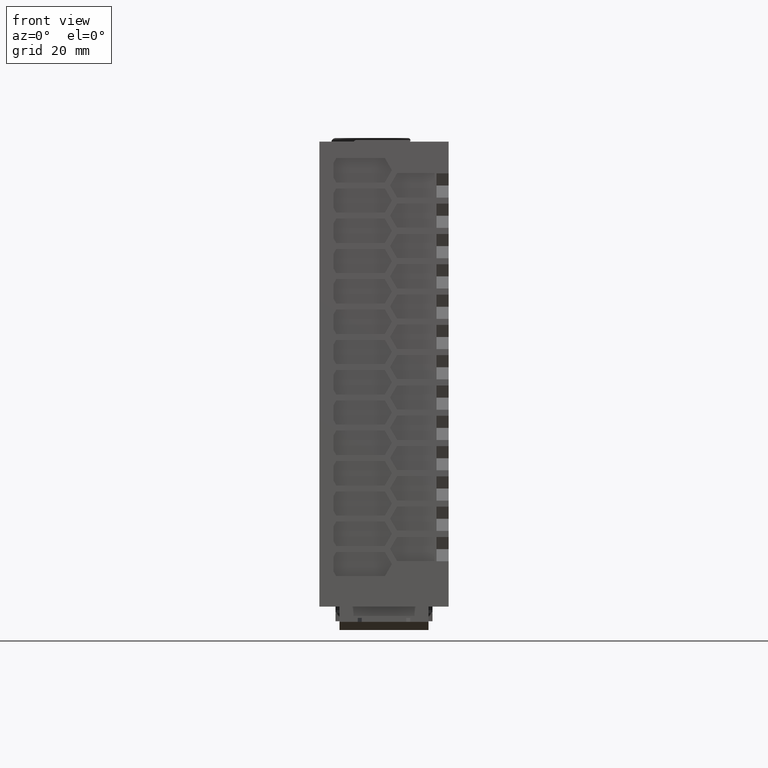
[diagram: clean part render]
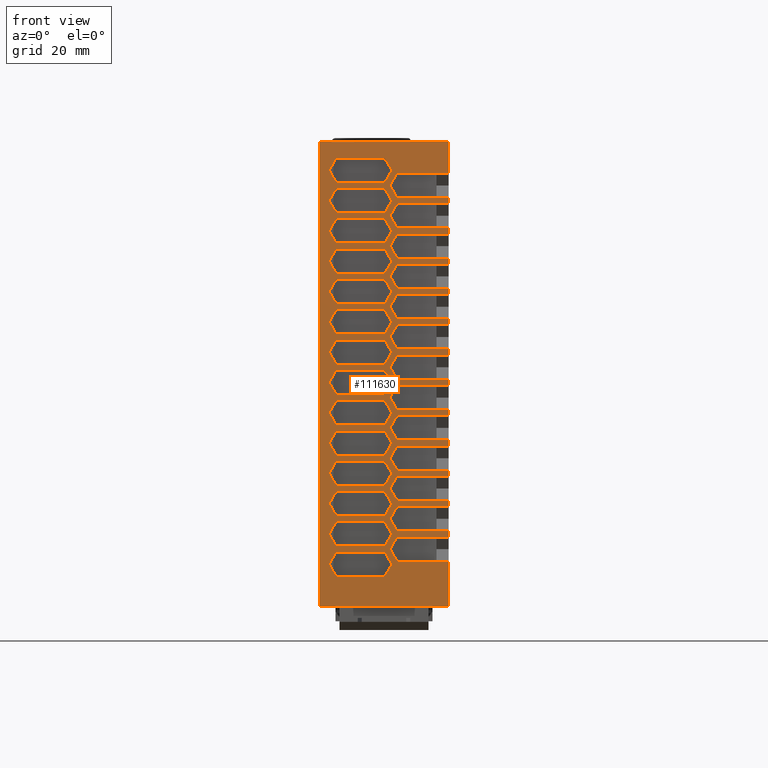
[diagram: same view with one face highlighted and labeled with its STEP entity id]
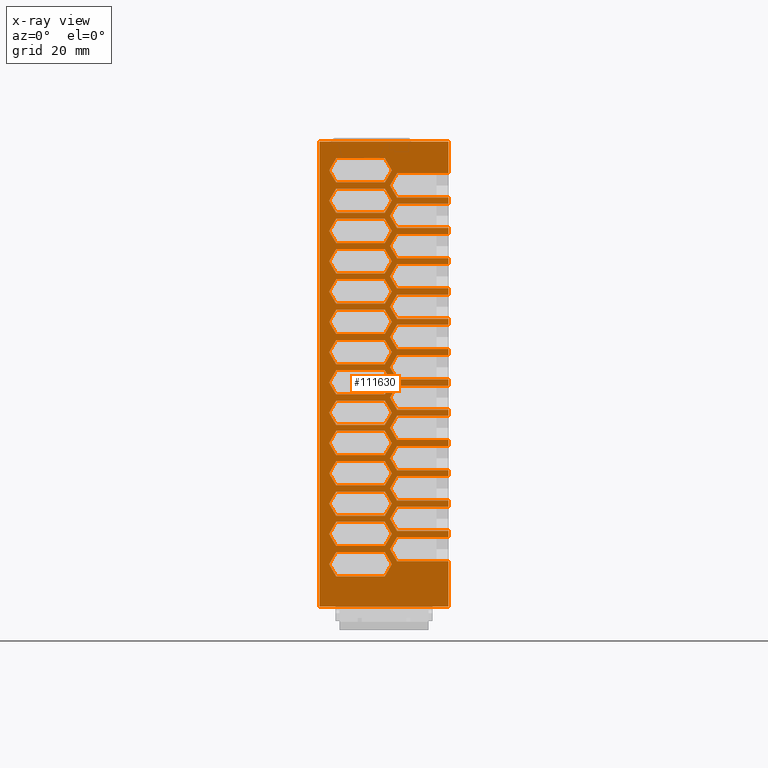
[diagram: x-ray of the same camera — body ghosted, the highlighted face saturated]
A machine part, front view. The second image highlights one B-rep face of the part: STEP entity #111630.
The next image is the same camera in x-ray: the body ghosted, the highlighted face saturated — about 0% of this face is hidden behind the body in this view.
In plain terms, the highlighted planar face has unit normal (0, -1, 0).
Its self-contained STEP definition (entity closure, byte-faithful):
#1830=CARTESIAN_POINT('',(32.,-65.,-80.249999999998));
#1840=VERTEX_POINT('',#1830);
#1890=CARTESIAN_POINT('',(0.,-65.,-80.2500000000008));
#1900=DIRECTION('',(1.,0.,0.));
#1910=VECTOR('',#1900,1.);
#1920=LINE('',#1890,#1910);
#1930=CARTESIAN_POINT('',(19.2320508075701,-65.,-80.2500000000005));
#1940=VERTEX_POINT('',#1930);
#1950=EDGE_CURVE('',#1940,#1840,#1920,.T.);
#2350=CARTESIAN_POINT('',(62.1003082949024,-65.,0.));
#2360=DIRECTION('',(-0.500000000000017,0.,-0.866025403784429));
#2370=VECTOR('',#2360,1.);
#2380=LINE('',#2350,#2370);
#2390=CARTESIAN_POINT('',(19.2320508075704,-65.,-74.2499999999975));
#2400=VERTEX_POINT('',#2390);
#2410=CARTESIAN_POINT('',(17.5000000000013,-65.,-77.2500000000008));
#2420=VERTEX_POINT('',#2410);
#2430=EDGE_CURVE('',#2400,#2420,#2380,.T.);
#2810=CARTESIAN_POINT('',(32.,-65.,-27.7499999999999));
#2820=VERTEX_POINT('',#2810);
#2850=CARTESIAN_POINT('',(0.,-65.,-27.7500000000008));
#2860=DIRECTION('',(1.,0.,0.));
#2870=VECTOR('',#2860,1.);
#2880=LINE('',#2850,#2870);
#2890=CARTESIAN_POINT('',(19.2320508075701,-65.,-27.7499999999999));
#2900=VERTEX_POINT('',#2890);
#2910=EDGE_CURVE('',#2900,#2820,#2880,.T.);
#3310=CARTESIAN_POINT('',(70.7605623327472,-65.,0.));
#3320=DIRECTION('',(-0.500000000000017,0.,-0.866025403784429));
#3330=VECTOR('',#3320,1.);
#3340=LINE('',#3310,#3330);
#3350=CARTESIAN_POINT('',(19.2320508075704,-65.,-89.249999999997));
#3360=VERTEX_POINT('',#3350);
#3370=CARTESIAN_POINT('',(17.5000000000013,-65.,-92.2500000000008));
#3380=VERTEX_POINT('',#3370);
#3390=EDGE_CURVE('',#3360,#3380,#3340,.T.);
#7830=CARTESIAN_POINT('',(32.,-65.,-87.7499999999977));
#7840=VERTEX_POINT('',#7830);
#7890=CARTESIAN_POINT('',(0.,-65.,-87.7500000000008));
#7900=DIRECTION('',(1.,0.,0.));
#7910=VECTOR('',#7900,1.);
#7920=LINE('',#7890,#7910);
#7930=CARTESIAN_POINT('',(19.23205080757,-65.,-87.7500000000005));
#7940=VERTEX_POINT('',#7930);
#7950=EDGE_CURVE('',#7940,#7840,#7920,.T.);
#8880=CARTESIAN_POINT('',(19.2320508075704,-65.,-81.7499999999972));
#8890=VERTEX_POINT('',#8880);
#8920=CARTESIAN_POINT('',(0.,-65.,-81.7499999999972));
#8930=DIRECTION('',(-1.,0.,0.));
#8940=VECTOR('',#8930,1.);
#8950=LINE('',#8920,#8940);
#8960=CARTESIAN_POINT('',(32.,-65.,-81.7499999999972));
#8970=VERTEX_POINT('',#8960);
#8980=EDGE_CURVE('',#8970,#8890,#8950,.T.);
#10450=CARTESIAN_POINT('',(32.,-65.,-65.2500000000008));
#10460=VERTEX_POINT('',#10450);
#10510=CARTESIAN_POINT('',(0.,-65.,-65.2500000000008));
#10520=DIRECTION('',(1.,0.,0.));
#10530=VECTOR('',#10520,1.);
#10540=LINE('',#10510,#10530);
#10550=CARTESIAN_POINT('',(19.2320508075701,-65.,-65.2500000000005));
#10560=VERTEX_POINT('',#10550);
#10570=EDGE_CURVE('',#10560,#10460,#10540,.T.);
#12840=CARTESIAN_POINT('',(19.2320508075704,-65.,-59.2499999999981));
#12850=VERTEX_POINT('',#12840);
#12880=CARTESIAN_POINT('',(0.,-65.,-59.2499999999981));
#12890=DIRECTION('',(-1.,0.,0.));
#12900=VECTOR('',#12890,1.);
#12910=LINE('',#12880,#12900);
#12920=CARTESIAN_POINT('',(32.,-65.,-59.2499999999981));
#12930=VERTEX_POINT('',#12920);
#12940=EDGE_CURVE('',#12930,#12850,#12910,.T.);
#20150=CARTESIAN_POINT('',(19.2320508075713,-65.,-44.2499999999991));
#20160=VERTEX_POINT('',#20150);
#20190=CARTESIAN_POINT('',(0.,-65.,-44.2499999999986));
#20200=DIRECTION('',(-1.,0.,0.));
#20210=VECTOR('',#20200,1.);
#20220=LINE('',#20190,#20210);
#20230=CARTESIAN_POINT('',(32.,-65.,-44.2499999999986));
#20240=VERTEX_POINT('',#20230);
#20250=EDGE_CURVE('',#20240,#20160,#20220,.T.);
#27670=CARTESIAN_POINT('',(0.,-65.,0.));
#27680=DIRECTION('',(0.,0.,-1.));
#27690=VECTOR('',#27680,1.);
#27700=LINE('',#27670,#27690);
#27710=CARTESIAN_POINT('',(0.,-65.,1.09999999999935));
#27720=VERTEX_POINT('',#27710);
#27730=CARTESIAN_POINT('',(0.,-65.,-114.));
#27740=VERTEX_POINT('',#27730);
#27750=EDGE_CURVE('',#27720,#27740,#27700,.T.);
#31780=CARTESIAN_POINT('',(19.2320508075704,-65.,-29.2499999999992));
#31790=VERTEX_POINT('',#31780);
#31820=CARTESIAN_POINT('',(0.,-65.,-29.2499999999992));
#31830=DIRECTION('',(-1.,0.,0.));
#31840=VECTOR('',#31830,1.);
#31850=LINE('',#31820,#31840);
#31860=CARTESIAN_POINT('',(32.,-65.,-29.2499999999992));
#31870=VERTEX_POINT('',#31860);
#31880=EDGE_CURVE('',#31870,#31790,#31850,.T.);
#32810=CARTESIAN_POINT('',(19.2320508075704,-65.,-66.7499999999978));
#32820=VERTEX_POINT('',#32810);
#32850=CARTESIAN_POINT('',(0.,-65.,-66.7499999999978));
#32860=DIRECTION('',(-1.,0.,0.));
#32870=VECTOR('',#32860,1.);
#32880=LINE('',#32850,#32870);
#32890=CARTESIAN_POINT('',(32.,-65.,-66.7499999999978));
#32900=VERTEX_POINT('',#32890);
#32910=EDGE_CURVE('',#32900,#32820,#32880,.T.);
#33280=CARTESIAN_POINT('',(19.2320508075704,-65.,-6.74999999999972));
#33290=VERTEX_POINT('',#33280);
#33320=CARTESIAN_POINT('',(0.,-65.,-6.74999999999972));
#33330=DIRECTION('',(-1.,0.,0.));
#33340=VECTOR('',#33330,1.);
#33350=LINE('',#33320,#33340);
#33360=CARTESIAN_POINT('',(32.,-65.,-6.74999999999972));
#33370=VERTEX_POINT('',#33360);
#33380=EDGE_CURVE('',#33370,#33290,#33350,.T.);
#33820=CARTESIAN_POINT('',(19.2320508075704,-65.,-14.2499999999997));
#33830=VERTEX_POINT('',#33820);
#33860=CARTESIAN_POINT('',(0.,-65.,-14.2499999999997));
#33870=DIRECTION('',(-1.,0.,0.));
#33880=VECTOR('',#33870,1.);
#33890=LINE('',#33860,#33880);
#33900=CARTESIAN_POINT('',(32.,-65.,-14.2499999999997));
#33910=VERTEX_POINT('',#33900);
#33920=EDGE_CURVE('',#33910,#33830,#33890,.T.);
#35790=CARTESIAN_POINT('',(32.,-65.,-57.7499999999988));
#35800=VERTEX_POINT('',#35790);
#35850=CARTESIAN_POINT('',(0.,-65.,-57.7500000000008));
#35860=DIRECTION('',(1.,0.,0.));
#35870=VECTOR('',#35860,1.);
#35880=LINE('',#35850,#35870);
#35890=CARTESIAN_POINT('',(19.2320508075694,-65.,-57.7499999999988));
#35900=VERTEX_POINT('',#35890);
#35910=EDGE_CURVE('',#35900,#35800,#35880,.T.);
#36830=CARTESIAN_POINT('',(19.2320508075709,-65.,-21.7499999999997));
#36840=VERTEX_POINT('',#36830);
#36870=CARTESIAN_POINT('',(0.,-65.,-21.7499999999994));
#36880=DIRECTION('',(-1.,0.,0.));
#36890=VECTOR('',#36880,1.);
#36900=LINE('',#36870,#36890);
#36910=CARTESIAN_POINT('',(32.,-65.,-21.7499999999994));
#36920=VERTEX_POINT('',#36910);
#36930=EDGE_CURVE('',#36920,#36840,#36900,.T.);
#37210=CARTESIAN_POINT('',(19.2320508075711,-65.,-36.7499999999989));
#37220=VERTEX_POINT('',#37210);
#37250=CARTESIAN_POINT('',(0.,-65.,-36.7499999999989));
#37260=DIRECTION('',(-1.,0.,0.));
#37270=VECTOR('',#37260,1.);
#37280=LINE('',#37250,#37270);
#37290=CARTESIAN_POINT('',(32.,-65.,-36.7499999999989));
#37300=VERTEX_POINT('',#37290);
#37310=EDGE_CURVE('',#37300,#37220,#37280,.T.);
#39740=CARTESIAN_POINT('',(-200.318564891799,-264.318564891799,
1.09999999999935));
#39750=CARTESIAN_POINT('',(231.3185648918,-264.318564891799,
1.09999999999935));
#39760=CARTESIAN_POINT('',(-200.318564891799,251.318564891799,
1.09999999999935));
#39770=CARTESIAN_POINT('',(231.3185648918,251.318564891799,
1.09999999999935));
#39780=B_SPLINE_SURFACE_WITH_KNOTS('',1,1,((#39740,#39760),(#39750,
#39770)),.UNSPECIFIED.,.F.,.F.,.F.,(2,2),(2,2),(-200.818564891799,
230.818564891799),(-200.818564891799,314.818564891799),.UNSPECIFIED.);
#41080=CARTESIAN_POINT('',(32.,-65.,1.09999999999935));
#41090=VERTEX_POINT('',#41080);
#41120=CARTESIAN_POINT('',(40.,-65.,1.));
#41130=DIRECTION('',(0.,-1.,0.));
#41140=DIRECTION('',(0.,0.,1.));
#41150=AXIS2_PLACEMENT_3D('',#41120,#41130,#41140);
#41160=PLANE('',#41150);
#41170=CARTESIAN_POINT('',(32.,-65.,1.09999999999935));
#41180=CARTESIAN_POINT('',(29.3333333333334,-65.,1.09999999999935));
#41190=CARTESIAN_POINT('',(26.6666666666666,-65.,1.09999999999935));
#41200=CARTESIAN_POINT('',(24.,-65.,1.09999999999935));
#41210=CARTESIAN_POINT('',(21.3333333333333,-65.,1.09999999999935));
#41220=CARTESIAN_POINT('',(18.6666666666667,-65.,1.09999999999935));
#41230=CARTESIAN_POINT('',(16.,-65.,1.09999999999935));
#41240=CARTESIAN_POINT('',(13.3333333333333,-65.,1.09999999999935));
#41250=CARTESIAN_POINT('',(10.6666666666667,-65.,1.09999999999935));
#41260=CARTESIAN_POINT('',(8.,-65.,1.09999999999935));
#41270=CARTESIAN_POINT('',(5.33333333333333,-65.,1.09999999999935));
#41280=CARTESIAN_POINT('',(2.66666666666665,-65.,1.09999999999935));
#41290=CARTESIAN_POINT('',(0.,-65.,1.09999999999935));
#41300=B_SPLINE_CURVE_WITH_KNOTS('',3,(#41170,#41180,#41190,#41200,
#41210,#41220,#41230,#41240,#41250,#41260,#41270,#41280,#41290),
.UNSPECIFIED.,.F.,.F.,(4,3,3,3,4),(0.,7.99999999999999,16.,24.,32.),
.UNSPECIFIED.);
#41310=SURFACE_CURVE('',#41300,(#41160,#39780),.CURVE_3D.);
#41320=EDGE_CURVE('',#41090,#27720,#41310,.T.);
#47060=CARTESIAN_POINT('',(32.,-65.,-114.));
#47070=VERTEX_POINT('',#47060);
#47100=CARTESIAN_POINT('',(32.,-65.,0.));
#47110=DIRECTION('',(0.,0.,-1.));
#47120=VECTOR('',#47110,1.);
#47130=LINE('',#47100,#47120);
#47140=CARTESIAN_POINT('',(32.,-65.,-102.749999999997));
#47150=VERTEX_POINT('',#47140);
#47160=EDGE_CURVE('',#47150,#47070,#47130,.T.);
#47460=CARTESIAN_POINT('',(32.,-65.,-96.7499999999967));
#47470=VERTEX_POINT('',#47460);
#47500=CARTESIAN_POINT('',(32.,-65.,0.));
#47510=DIRECTION('',(0.,0.,1.));
#47520=VECTOR('',#47510,1.);
#47530=LINE('',#47500,#47520);
#47540=CARTESIAN_POINT('',(32.,-65.,-95.2499999999974));
#47550=VERTEX_POINT('',#47540);
#47560=EDGE_CURVE('',#47470,#47550,#47530,.T.);
#47770=CARTESIAN_POINT('',(32.,-65.,-89.249999999997));
#47780=VERTEX_POINT('',#47770);
#47810=EDGE_CURVE('',#47780,#7840,#47530,.T.);
#47870=EDGE_CURVE('',#8970,#1840,#47530,.T.);
#48030=CARTESIAN_POINT('',(32.,-65.,-74.2499999999975));
#48040=VERTEX_POINT('',#48030);
#48070=CARTESIAN_POINT('',(32.,-65.,-72.7499999999982));
#48080=VERTEX_POINT('',#48070);
#48090=EDGE_CURVE('',#48040,#48080,#47530,.T.);
#48340=EDGE_CURVE('',#32900,#10460,#47530,.T.);
#48400=EDGE_CURVE('',#12930,#35800,#47530,.T.);
#48540=CARTESIAN_POINT('',(32.,-65.,-51.7499999999983));
#48550=VERTEX_POINT('',#48540);
#48580=CARTESIAN_POINT('',(32.,-65.,-50.2499999999991));
#48590=VERTEX_POINT('',#48580);
#48600=EDGE_CURVE('',#48550,#48590,#47530,.T.);
#48710=CARTESIAN_POINT('',(32.,-65.,-42.7499999999993));
#48720=VERTEX_POINT('',#48710);
#48730=EDGE_CURVE('',#20240,#48720,#47530,.T.);
#48980=CARTESIAN_POINT('',(32.,-65.,-35.2499999999996));
#48990=VERTEX_POINT('',#48980);
#49000=EDGE_CURVE('',#37300,#48990,#47530,.T.);
#49110=EDGE_CURVE('',#31870,#2820,#47530,.T.);
#49220=CARTESIAN_POINT('',(32.,-65.,-20.2500000000002));
#49230=VERTEX_POINT('',#49220);
#49240=EDGE_CURVE('',#36920,#49230,#47530,.T.);
#49490=CARTESIAN_POINT('',(32.,-65.,-12.7500000000008));
#49500=VERTEX_POINT('',#49490);
#49510=EDGE_CURVE('',#33910,#49500,#47530,.T.);
#49620=CARTESIAN_POINT('',(32.,-65.,0.));
#49630=DIRECTION('',(0.,0.,1.));
#49640=VECTOR('',#49630,1.);
#49650=LINE('',#49620,#49640);
#49660=EDGE_CURVE('',#33370,#41090,#49650,.T.);
#49770=CARTESIAN_POINT('',(0.,-65.,-55.5000000000005));
#49780=DIRECTION('',(-1.,0.,0.));
#49790=VECTOR('',#49780,1.);
#49800=LINE('',#49770,#49790);
#49810=CARTESIAN_POINT('',(16.2009491924307,-65.,-55.5000000000005));
#49820=VERTEX_POINT('',#49810);
#49830=CARTESIAN_POINT('',(4.16505080757037,-65.,-55.5000000000005));
#49840=VERTEX_POINT('',#49830);
#49850=EDGE_CURVE('',#49820,#49840,#49800,.T.);
#50170=CARTESIAN_POINT('',(-31.3419907475948,-65.,0.));
#50180=DIRECTION('',(0.500000000000017,0.,-0.866025403784429));
#50190=VECTOR('',#50180,1.);
#50200=LINE('',#50170,#50190);
#50210=CARTESIAN_POINT('',(2.43300000000068,-65.,-58.5000000000015));
#50220=VERTEX_POINT('',#50210);
#50230=CARTESIAN_POINT('',(4.16505080756931,-65.,-61.5000000000008));
#50240=VERTEX_POINT('',#50230);
#50250=EDGE_CURVE('',#50220,#50240,#50200,.T.);
#52680=CARTESIAN_POINT('',(23.2176096908292,-65.,0.));
#52690=DIRECTION('',(-0.500000000000017,0.,-0.866025403784429));
#52700=VECTOR('',#52690,1.);
#52710=LINE('',#52680,#52700);
#52720=CARTESIAN_POINT('',(4.16505080757037,-65.,-33.0000000000005));
#52730=VERTEX_POINT('',#52720);
#52740=CARTESIAN_POINT('',(2.43300000000031,-65.,-36.0000000000008));
#52750=VERTEX_POINT('',#52740);
#52760=EDGE_CURVE('',#52730,#52750,#52710,.T.);
#55900=CARTESIAN_POINT('',(0.,-65.,-114.));
#55910=DIRECTION('',(-1.,0.,0.));
#55920=VECTOR('',#55910,1.);
#55930=LINE('',#55900,#55920);
#55940=EDGE_CURVE('',#47070,#27740,#55930,.T.);
#57530=CARTESIAN_POINT('',(0.,-65.,-35.2500000000008));
#57540=DIRECTION('',(1.,0.,0.));
#57550=VECTOR('',#57540,1.);
#57560=LINE('',#57530,#57550);
#57570=CARTESIAN_POINT('',(19.2320508075701,-65.,-35.2500000000005));
#57580=VERTEX_POINT('',#57570);
#57590=EDGE_CURVE('',#57580,#48990,#57560,.T.);
#58520=CARTESIAN_POINT('',(19.2320508075704,-65.,-51.7500000000006));
#58530=VERTEX_POINT('',#58520);
#58560=CARTESIAN_POINT('',(0.,-65.,-51.7499999999983));
#58570=DIRECTION('',(-1.,0.,0.));
#58580=VECTOR('',#58570,1.);
#58590=LINE('',#58560,#58580);
#58600=EDGE_CURVE('',#48550,#58530,#58590,.T.);
#61490=CARTESIAN_POINT('',(0.,-65.,-74.2499999999975));
#61500=DIRECTION('',(-1.,0.,0.));
#61510=VECTOR('',#61500,1.);
#61520=LINE('',#61490,#61510);
#61530=EDGE_CURVE('',#48040,#2400,#61520,.T.);
#63240=CARTESIAN_POINT('',(0.,-65.,-50.2500000000008));
#63250=DIRECTION('',(1.,0.,0.));
#63260=VECTOR('',#63250,1.);
#63270=LINE('',#63240,#63260);
#63280=CARTESIAN_POINT('',(19.2320508075701,-65.,-50.2500000000005));
#63290=VERTEX_POINT('',#63280);
#63300=EDGE_CURVE('',#63290,#48590,#63270,.T.);
#64450=CARTESIAN_POINT('',(0.,-65.,-72.7500000000008));
#64460=DIRECTION('',(1.,0.,0.));
#64470=VECTOR('',#64460,1.);
#64480=LINE('',#64450,#64470);
#64490=CARTESIAN_POINT('',(19.2320508075694,-65.,-72.7499999999982));
#64500=VERTEX_POINT('',#64490);
#64510=EDGE_CURVE('',#64500,#48080,#64480,.T.);
#65660=CARTESIAN_POINT('',(40.4496732002904,-65.,0.));
#65670=DIRECTION('',(-0.500000000000017,0.,-0.866025403784429));
#65680=VECTOR('',#65670,1.);
#65690=LINE('',#65660,#65680);
#65700=CARTESIAN_POINT('',(17.5000000000013,-65.,-39.7500000000008));
#65710=VERTEX_POINT('',#65700);
#65720=EDGE_CURVE('',#37220,#65710,#65690,.T.);
#65970=CARTESIAN_POINT('',(49.1099272381352,-65.,0.));
#65980=DIRECTION('',(-0.500000000000017,0.,-0.866025403784429));
#65990=VECTOR('',#65980,1.);
#66000=LINE('',#65970,#65990);
#66010=CARTESIAN_POINT('',(17.5000000000013,-65.,-54.7500000000008));
#66020=VERTEX_POINT('',#66010);
#66030=EDGE_CURVE('',#58530,#66020,#66000,.T.);
#69520=CARTESIAN_POINT('',(-2.8516096908283,-65.,0.));
#69530=DIRECTION('',(-0.500000000000017,0.,0.866025403784429));
#69540=VECTOR('',#69530,1.);
#69550=LINE('',#69520,#69540);
#69560=CARTESIAN_POINT('',(17.9329999999987,-65.,-36.));
#69570=VERTEX_POINT('',#69560);
#69580=CARTESIAN_POINT('',(16.2009491924307,-65.,-33.0000000000008));
#69590=VERTEX_POINT('',#69580);
#69600=EDGE_CURVE('',#69570,#69590,#69550,.T.);
#69920=CARTESIAN_POINT('',(3.21058083755696,-65.,0.));
#69930=DIRECTION('',(0.500000000000017,0.,-0.866025403784429));
#69940=VECTOR('',#69930,1.);
#69950=LINE('',#69920,#69940);
#69960=CARTESIAN_POINT('',(17.5000000000013,-65.,-24.7500000000008));
#69970=VERTEX_POINT('',#69960);
#69980=EDGE_CURVE('',#69970,#2900,#69950,.T.);
#85100=CARTESIAN_POINT('',(0.,-65.,-39.0000000000008));
#85110=DIRECTION('',(1.,0.,0.));
#85120=VECTOR('',#85110,1.);
#85130=LINE('',#85100,#85120);
#85140=CARTESIAN_POINT('',(4.16505080756931,-65.,-39.0000000000008));
#85150=VERTEX_POINT('',#85140);
#85160=CARTESIAN_POINT('',(16.2009491924294,-65.,-39.0000000000008));
#85170=VERTEX_POINT('',#85160);
#85180=EDGE_CURVE('',#85150,#85170,#85130,.T.);
#85910=CARTESIAN_POINT('',(-18.3516096908276,-65.,0.));
#85920=DIRECTION('',(0.500000000000017,0.,-0.866025403784429));
#85930=VECTOR('',#85920,1.);
#85940=LINE('',#85910,#85930);
#85950=EDGE_CURVE('',#52750,#85150,#85940,.T.);
#86130=CARTESIAN_POINT('',(38.7176096908262,-65.,0.));
#86140=DIRECTION('',(0.500000000000017,0.,0.866025403784429));
#86150=VECTOR('',#86140,1.);
#86160=LINE('',#86130,#86150);
#86170=EDGE_CURVE('',#85170,#69570,#86160,.T.);
#87820=CARTESIAN_POINT('',(0.,-65.,-89.249999999997));
#87830=DIRECTION('',(-1.,0.,0.));
#87840=VECTOR('',#87830,1.);
#87850=LINE('',#87820,#87840);
#87860=EDGE_CURVE('',#47780,#3360,#87850,.T.);
#90380=CARTESIAN_POINT('',(0.,-65.,-42.7500000000008));
#90390=DIRECTION('',(1.,0.,0.));
#90400=VECTOR('',#90390,1.);
#90410=LINE('',#90380,#90400);
#90420=CARTESIAN_POINT('',(19.2320508075694,-65.,-42.7499999999993));
#90430=VERTEX_POINT('',#90420);
#90440=EDGE_CURVE('',#90430,#48720,#90410,.T.);
#92730=CARTESIAN_POINT('',(0.,-65.,-102.750000000001));
#92740=DIRECTION('',(1.,0.,0.));
#92750=VECTOR('',#92740,1.);
#92760=LINE('',#92730,#92750);
#92770=CARTESIAN_POINT('',(19.2320508075694,-65.,-102.749999999997));
#92780=VERTEX_POINT('',#92770);
#92790=EDGE_CURVE('',#92780,#47150,#92760,.T.);
#93100=CARTESIAN_POINT('',(23.1291651246009,-65.,0.));
#93110=DIRECTION('',(-0.500000000000017,0.,-0.866025403784429));
#93120=VECTOR('',#93110,1.);
#93130=LINE('',#93100,#93120);
#93140=CARTESIAN_POINT('',(17.5000000000013,-65.,-9.75000000000083));
#93150=VERTEX_POINT('',#93140);
#93160=EDGE_CURVE('',#33290,#93150,#93130,.T.);
#93730=CARTESIAN_POINT('',(-40.0906893516669,-65.,0.));
#93740=DIRECTION('',(0.500000000000017,0.,-0.866025403784429));
#93750=VECTOR('',#93740,1.);
#93760=LINE('',#93730,#93750);
#93770=CARTESIAN_POINT('',(17.5000000000013,-65.,-99.7500000000008));
#93780=VERTEX_POINT('',#93770);
#93790=EDGE_CURVE('',#93780,#92780,#93760,.T.);
#94040=CARTESIAN_POINT('',(-1.11954618136543,-65.,0.));
#94050=DIRECTION('',(0.500000000000017,0.,-0.866025403784429));
#94060=VECTOR('',#94050,1.);
#94070=LINE('',#94040,#94060);
#94080=CARTESIAN_POINT('',(17.5000000000013,-65.,-32.2500000000008));
#94090=VERTEX_POINT('',#94080);
#94100=EDGE_CURVE('',#94090,#57580,#94070,.T.);
#94760=CARTESIAN_POINT('',(-27.1003082948998,-65.,0.));
#94770=DIRECTION('',(0.500000000000017,0.,-0.866025403784429));
#94780=VECTOR('',#94770,1.);
#94790=LINE('',#94760,#94780);
#94800=EDGE_CURVE('',#2420,#1940,#94790,.T.);
#96010=CARTESIAN_POINT('',(75.0906893516695,-65.,0.));
#96020=DIRECTION('',(-0.500000000000017,0.,-0.866025403784429));
#96030=VECTOR('',#96020,1.);
#96040=LINE('',#96010,#96030);
#96050=CARTESIAN_POINT('',(19.2320508075704,-65.,-96.7500000000007));
#96060=VERTEX_POINT('',#96050);
#96070=EDGE_CURVE('',#96060,#93780,#96040,.T.);
#96730=CARTESIAN_POINT('',(0.,-65.,-12.7500000000008));
#96740=DIRECTION('',(1.,0.,0.));
#96750=VECTOR('',#96740,1.);
#96760=LINE('',#96730,#96750);
#96770=CARTESIAN_POINT('',(19.2320508075694,-65.,-12.7500000000008));
#96780=VERTEX_POINT('',#96770);
#96790=EDGE_CURVE('',#96780,#49500,#96760,.T.);
#98400=CARTESIAN_POINT('',(-31.4304353138221,-65.,0.));
#98410=DIRECTION('',(0.500000000000017,0.,-0.866025403784429));
#98420=VECTOR('',#98410,1.);
#98430=LINE('',#98400,#98420);
#98440=CARTESIAN_POINT('',(17.5000000000013,-65.,-84.7500000000008));
#98450=VERTEX_POINT('',#98440);
#98460=EDGE_CURVE('',#98450,#7940,#98430,.T.);
#100380=CARTESIAN_POINT('',(0.,-65.,-96.7499999999967));
#100390=DIRECTION('',(-1.,0.,0.));
#100400=VECTOR('',#100390,1.);
#100410=LINE('',#100380,#100400);
#100420=EDGE_CURVE('',#47470,#96060,#100410,.T.);
#101120=CARTESIAN_POINT('',(0.,-65.,-20.2500000000008));
#101130=DIRECTION('',(1.,0.,0.));
#101140=VECTOR('',#101130,1.);
#101150=LINE('',#101120,#101140);
#101160=CARTESIAN_POINT('',(19.2320508075701,-65.,-20.2500000000005));
#101170=VERTEX_POINT('',#101160);
#101180=EDGE_CURVE('',#101170,#49230,#101150,.T.);
#102300=CARTESIAN_POINT('',(36.1195461813681,-65.,0.));
#102310=DIRECTION('',(-0.500000000000017,0.,-0.866025403784429));
#102320=VECTOR('',#102310,1.);
#102330=LINE('',#102300,#102320);
#102340=EDGE_CURVE('',#31790,#94090,#102330,.T.);
#103170=CARTESIAN_POINT('',(0.,-65.,-95.2500000000008));
#103180=DIRECTION('',(1.,0.,0.));
#103190=VECTOR('',#103180,1.);
#103200=LINE('',#103170,#103190);
#103210=CARTESIAN_POINT('',(19.23205080757,-65.,-95.2499999999974));
#103220=VERTEX_POINT('',#103210);
#103230=EDGE_CURVE('',#103220,#47550,#103200,.T.);
#103690=CARTESIAN_POINT('',(0.,-65.,-106.500000000001));
#103700=DIRECTION('',(1.,0.,0.));
#103710=VECTOR('',#103700,1.);
#103720=LINE('',#103690,#103710);
#103730=CARTESIAN_POINT('',(4.1650508075693,-65.,-106.500000000001));
#103740=VERTEX_POINT('',#103730);
#103750=CARTESIAN_POINT('',(16.2009491924294,-65.,-106.500000000001));
#103760=VERTEX_POINT('',#103750);
#103770=EDGE_CURVE('',#103740,#103760,#103720,.T.);
#103780=ORIENTED_EDGE('',*,*,#103770,.F.);
#103790=CARTESIAN_POINT('',(77.6887528611276,-65.,0.));
#103800=DIRECTION('',(0.500000000000017,0.,0.866025403784429));
#103810=VECTOR('',#103800,1.);
#103820=LINE('',#103790,#103810);
#103830=CARTESIAN_POINT('',(17.9329999999991,-65.,-103.5));
#103840=VERTEX_POINT('',#103830);
#103850=EDGE_CURVE('',#103760,#103840,#103820,.T.);
#103860=ORIENTED_EDGE('',*,*,#103850,.F.);
#103870=CARTESIAN_POINT('',(-41.8227528611298,-65.,0.));
#103880=DIRECTION('',(-0.500000000000017,0.,0.866025403784429));
#103890=VECTOR('',#103880,1.);
#103900=LINE('',#103870,#103890);
#103910=CARTESIAN_POINT('',(16.2009491924307,-65.,-100.500000000001));
#103920=VERTEX_POINT('',#103910);
#103930=EDGE_CURVE('',#103840,#103920,#103900,.T.);
#103940=ORIENTED_EDGE('',*,*,#103930,.F.);
#103950=CARTESIAN_POINT('',(0.,-65.,-100.5));
#103960=DIRECTION('',(-1.,0.,0.));
#103970=VECTOR('',#103960,1.);
#103980=LINE('',#103950,#103970);
#103990=CARTESIAN_POINT('',(4.16505080757045,-65.,-100.500000000001));
#104000=VERTEX_POINT('',#103990);
#104010=EDGE_CURVE('',#103920,#104000,#103980,.T.);
#104020=ORIENTED_EDGE('',*,*,#104010,.F.);
#104030=CARTESIAN_POINT('',(62.1887528611307,-65.,0.));
#104040=DIRECTION('',(-0.500000000000017,0.,-0.866025403784429));
#104050=VECTOR('',#104040,1.);
#104060=LINE('',#104030,#104050);
#104070=CARTESIAN_POINT('',(2.43300000000031,-65.,-103.500000000001));
#104080=VERTEX_POINT('',#104070);
#104090=EDGE_CURVE('',#104000,#104080,#104060,.T.);
#104100=ORIENTED_EDGE('',*,*,#104090,.F.);
#104110=CARTESIAN_POINT('',(-57.3227528611291,-65.,0.));
#104120=DIRECTION('',(0.500000000000017,0.,-0.866025403784429));
#104130=VECTOR('',#104120,1.);
#104140=LINE('',#104110,#104130);
#104150=EDGE_CURVE('',#104080,#103740,#104140,.T.);
#104160=ORIENTED_EDGE('',*,*,#104150,.F.);
#104170=EDGE_LOOP('',(#104160,#104100,#104020,#103940,#103860,#103780));
#104180=FACE_BOUND('',#104170,.T.);
#104190=CARTESIAN_POINT('',(-28.8323718043626,-65.,0.));
#104200=DIRECTION('',(-0.500000000000017,0.,0.866025403784429));
#104210=VECTOR('',#104200,1.);
#104220=LINE('',#104190,#104210);
#104230=CARTESIAN_POINT('',(17.9329999999994,-65.,-81.0000000000005));
#104240=VERTEX_POINT('',#104230);
#104250=CARTESIAN_POINT('',(16.2009491924307,-65.,-78.0000000000008));
#104260=VERTEX_POINT('',#104250);
#104270=EDGE_CURVE('',#104240,#104260,#104220,.T.);
#104280=ORIENTED_EDGE('',*,*,#104270,.F.);
#104290=CARTESIAN_POINT('',(0.,-65.,-78.0000000000005));
#104300=DIRECTION('',(-1.,0.,0.));
#104310=VECTOR('',#104300,1.);
#104320=LINE('',#104290,#104310);
#104330=CARTESIAN_POINT('',(4.16505080757045,-65.,-78.0000000000005));
#104340=VERTEX_POINT('',#104330);
#104350=EDGE_CURVE('',#104260,#104340,#104320,.T.);
#104360=ORIENTED_EDGE('',*,*,#104350,.F.);
#104370=CARTESIAN_POINT('',(49.1983718043636,-65.,0.));
#104380=DIRECTION('',(-0.500000000000017,0.,-0.866025403784429));
#104390=VECTOR('',#104380,1.);
#104400=LINE('',#104370,#104390);
#104410=CARTESIAN_POINT('',(2.43300000000106,-65.,-81.0000000000013));
#104420=VERTEX_POINT('',#104410);
#104430=EDGE_CURVE('',#104340,#104420,#104400,.T.);
#104440=ORIENTED_EDGE('',*,*,#104430,.F.);
#104450=CARTESIAN_POINT('',(-44.3323718043619,-65.,0.));
#104460=DIRECTION('',(0.500000000000017,0.,-0.866025403784429));
#104470=VECTOR('',#104460,1.);
#104480=LINE('',#104450,#104470);
#104490=CARTESIAN_POINT('',(4.16505080756932,-65.,-84.0000000000008));
#104500=VERTEX_POINT('',#104490);
#104510=EDGE_CURVE('',#104420,#104500,#104480,.T.);
#104520=ORIENTED_EDGE('',*,*,#104510,.F.);
#104530=CARTESIAN_POINT('',(0.,-65.,-84.0000000000008));
#104540=DIRECTION('',(1.,0.,0.));
#104550=VECTOR('',#104540,1.);
#104560=LINE('',#104530,#104550);
#104570=CARTESIAN_POINT('',(16.2009491924294,-65.,-84.0000000000006));
#104580=VERTEX_POINT('',#104570);
#104590=EDGE_CURVE('',#104500,#104580,#104560,.T.);
#104600=ORIENTED_EDGE('',*,*,#104590,.F.);
#104610=CARTESIAN_POINT('',(64.6983718043605,-65.,0.));
#104620=DIRECTION('',(0.500000000000017,0.,0.866025403784429));
#104630=VECTOR('',#104620,1.);
#104640=LINE('',#104610,#104630);
#104650=EDGE_CURVE('',#104580,#104240,#104640,.T.);
#104660=ORIENTED_EDGE('',*,*,#104650,.F.);
#104670=EDGE_LOOP('',(#104660,#104600,#104520,#104440,#104360,#104280));
#104680=FACE_BOUND('',#104670,.T.);
#104690=CARTESIAN_POINT('',(-27.0118637286724,-65.,0.));
#104700=DIRECTION('',(0.500000000000017,0.,-0.866025403784429));
#104710=VECTOR('',#104700,1.);
#104720=LINE('',#104690,#104710);
#104730=CARTESIAN_POINT('',(2.43300000000106,-65.,-51.0000000000013));
#104740=VERTEX_POINT('',#104730);
#104750=CARTESIAN_POINT('',(4.1650508075693,-65.,-54.0000000000009));
#104760=VERTEX_POINT('',#104750);
#104770=EDGE_CURVE('',#104740,#104760,#104720,.T.);
#104780=ORIENTED_EDGE('',*,*,#104770,.F.);
#104790=CARTESIAN_POINT('',(0.,-65.,-54.0000000000008));
#104800=DIRECTION('',(1.,0.,0.));
#104810=VECTOR('',#104800,1.);
#104820=LINE('',#104790,#104810);
#104830=CARTESIAN_POINT('',(16.2009491924293,-65.,-54.0000000000008));
#104840=VERTEX_POINT('',#104830);
#104850=EDGE_CURVE('',#104760,#104840,#104820,.T.);
#104860=ORIENTED_EDGE('',*,*,#104850,.F.);
#104870=CARTESIAN_POINT('',(47.3778637286709,-65.,0.));
#104880=DIRECTION('',(0.500000000000017,0.,0.866025403784429));
#104890=VECTOR('',#104880,1.);
#104900=LINE('',#104870,#104890);
#104910=CARTESIAN_POINT('',(17.9329999999987,-65.,-51.));
#104920=VERTEX_POINT('',#104910);
#104930=EDGE_CURVE('',#104840,#104920,#104900,.T.);
#104940=ORIENTED_EDGE('',*,*,#104930,.F.);
#104950=CARTESIAN_POINT('',(-11.5118637286731,-65.,0.));
#104960=DIRECTION('',(-0.500000000000017,0.,0.866025403784429));
#104970=VECTOR('',#104960,1.);
#104980=LINE('',#104950,#104970);
#104990=CARTESIAN_POINT('',(16.2009491924307,-65.,-48.0000000000005));
#105000=VERTEX_POINT('',#104990);
#105010=EDGE_CURVE('',#104920,#105000,#104980,.T.);
#105020=ORIENTED_EDGE('',*,*,#105010,.F.);
#105030=CARTESIAN_POINT('',(0.,-65.,-48.0000000000005));
#105040=DIRECTION('',(-1.,0.,0.));
#105050=VECTOR('',#105040,1.);
#105060=LINE('',#105030,#105050);
#105070=CARTESIAN_POINT('',(4.16505080757037,-65.,-48.0000000000006));
#105080=VERTEX_POINT('',#105070);
#105090=EDGE_CURVE('',#105000,#105080,#105060,.T.);
#105100=ORIENTED_EDGE('',*,*,#105090,.F.);
#105110=CARTESIAN_POINT('',(31.877863728674,-65.,0.));
#105120=DIRECTION('',(-0.500000000000017,0.,-0.866025403784429));
#105130=VECTOR('',#105120,1.);
#105140=LINE('',#105110,#105130);
#105150=EDGE_CURVE('',#105080,#104740,#105140,.T.);
#105160=ORIENTED_EDGE('',*,*,#105150,.F.);
#105170=EDGE_LOOP('',(#105160,#105100,#105020,#104940,#104860,#104780));
#105180=FACE_BOUND('',#105170,.T.);
#105190=ORIENTED_EDGE('',*,*,#52760,.F.);
#105200=ORIENTED_EDGE('',*,*,#85950,.F.);
#105210=ORIENTED_EDGE('',*,*,#85180,.F.);
#105220=ORIENTED_EDGE('',*,*,#86170,.F.);
#105230=ORIENTED_EDGE('',*,*,#69600,.F.);
#105240=CARTESIAN_POINT('',(0.,-65.,-33.0000000000005));
#105250=DIRECTION('',(-1.,0.,0.));
#105260=VECTOR('',#105250,1.);
#105270=LINE('',#105240,#105260);
#105280=EDGE_CURVE('',#69590,#52730,#105270,.T.);
#105290=ORIENTED_EDGE('',*,*,#105280,.F.);
#105300=EDGE_LOOP('',(#105290,#105230,#105220,#105210,#105200,#105190));
#105310=FACE_BOUND('',#105300,.T.);
#105320=CARTESIAN_POINT('',(73.3586258422053,-65.,0.));
#105330=DIRECTION('',(0.500000000000017,0.,0.866025403784429));
#105340=VECTOR('',#105330,1.);
#105350=LINE('',#105320,#105340);
#105360=CARTESIAN_POINT('',(16.2009491924293,-65.,-99.0000000000008));
#105370=VERTEX_POINT('',#105360);
#105380=CARTESIAN_POINT('',(17.9329999999991,-65.,-95.9999999999998));
#105390=VERTEX_POINT('',#105380);
#105400=EDGE_CURVE('',#105370,#105390,#105350,.T.);
#105410=ORIENTED_EDGE('',*,*,#105400,.F.);
#105420=CARTESIAN_POINT('',(-37.4926258422074,-65.,0.));
#105430=DIRECTION('',(-0.500000000000017,0.,0.866025403784429));
#105440=VECTOR('',#105430,1.);
#105450=LINE('',#105420,#105440);
#105460=CARTESIAN_POINT('',(16.2009491924313,-65.,-93.0000000000005));
#105470=VERTEX_POINT('',#105460);
#105480=EDGE_CURVE('',#105390,#105470,#105450,.T.);
#105490=ORIENTED_EDGE('',*,*,#105480,.F.);
#105500=CARTESIAN_POINT('',(0.,-65.,-93.0000000000005));
#105510=DIRECTION('',(-1.,0.,0.));
#105520=VECTOR('',#105510,1.);
#105530=LINE('',#105500,#105520);
#105540=CARTESIAN_POINT('',(4.16505080757045,-65.,-93.0000000000005));
#105550=VERTEX_POINT('',#105540);
#105560=EDGE_CURVE('',#105470,#105550,#105530,.T.);
#105570=ORIENTED_EDGE('',*,*,#105560,.F.);
#105580=CARTESIAN_POINT('',(57.8586258422083,-65.,0.));
#105590=DIRECTION('',(-0.500000000000017,0.,-0.866025403784429));
#105600=VECTOR('',#105590,1.);
#105610=LINE('',#105580,#105600);
#105620=CARTESIAN_POINT('',(2.43300000000067,-65.,-96.0000000000015));
#105630=VERTEX_POINT('',#105620);
#105640=EDGE_CURVE('',#105550,#105630,#105610,.T.);
#105650=ORIENTED_EDGE('',*,*,#105640,.F.);
#105660=CARTESIAN_POINT('',(-52.9926258422067,-65.,0.));
#105670=DIRECTION('',(0.500000000000017,0.,-0.866025403784429));
#105680=VECTOR('',#105670,1.);
#105690=LINE('',#105660,#105680);
#105700=CARTESIAN_POINT('',(4.1650508075693,-65.,-99.0000000000009));
#105710=VERTEX_POINT('',#105700);
#105720=EDGE_CURVE('',#105630,#105710,#105690,.T.);
#105730=ORIENTED_EDGE('',*,*,#105720,.F.);
#105740=CARTESIAN_POINT('',(0.,-65.,-99.0000000000008));
#105750=DIRECTION('',(1.,0.,0.));
#105760=VECTOR('',#105750,1.);
#105770=LINE('',#105740,#105760);
#105780=EDGE_CURVE('',#105710,#105370,#105770,.T.);
#105790=ORIENTED_EDGE('',*,*,#105780,.F.);
#105800=EDGE_LOOP('',(#105790,#105730,#105650,#105570,#105490,#105410));
#105810=FACE_BOUND('',#105800,.T.);
#105820=CARTESIAN_POINT('',(14.5573556529845,-65.,0.));
#105830=DIRECTION('',(-0.500000000000017,0.,-0.866025403784429));
#105840=VECTOR('',#105830,1.);
#105850=LINE('',#105820,#105840);
#105860=CARTESIAN_POINT('',(4.16505080757037,-65.,-18.0000000000005));
#105870=VERTEX_POINT('',#105860);
#105880=CARTESIAN_POINT('',(2.43300000000031,-65.,-21.0000000000008));
#105890=VERTEX_POINT('',#105880);
#105900=EDGE_CURVE('',#105870,#105890,#105850,.T.);
#105910=ORIENTED_EDGE('',*,*,#105900,.F.);
#105920=CARTESIAN_POINT('',(-9.69135565298285,-65.,0.));
#105930=DIRECTION('',(0.500000000000017,0.,-0.866025403784429));
#105940=VECTOR('',#105930,1.);
#105950=LINE('',#105920,#105940);
#105960=CARTESIAN_POINT('',(4.16505080756931,-65.,-24.0000000000009));
#105970=VERTEX_POINT('',#105960);
#105980=EDGE_CURVE('',#105890,#105970,#105950,.T.);
#105990=ORIENTED_EDGE('',*,*,#105980,.F.);
#106000=CARTESIAN_POINT('',(0.,-65.,-24.0000000000008));
#106010=DIRECTION('',(1.,0.,0.));
#106020=VECTOR('',#106010,1.);
#106030=LINE('',#106000,#106020);
#106040=CARTESIAN_POINT('',(16.2009491924293,-65.,-24.0000000000008));
#106050=VERTEX_POINT('',#106040);
#106060=EDGE_CURVE('',#105970,#106050,#106030,.T.);
#106070=ORIENTED_EDGE('',*,*,#106060,.F.);
#106080=CARTESIAN_POINT('',(30.0573556529814,-65.,0.));
#106090=DIRECTION('',(0.500000000000017,0.,0.866025403784429));
#106100=VECTOR('',#106090,1.);
#106110=LINE('',#106080,#106100);
#106120=CARTESIAN_POINT('',(17.9329999999987,-65.,-21.));
#106130=VERTEX_POINT('',#106120);
#106140=EDGE_CURVE('',#106050,#106130,#106110,.T.);
#106150=ORIENTED_EDGE('',*,*,#106140,.F.);
#106160=CARTESIAN_POINT('',(5.80864434701648,-65.,0.));
#106170=DIRECTION('',(-0.500000000000017,0.,0.866025403784429));
#106180=VECTOR('',#106170,1.);
#106190=LINE('',#106160,#106180);
#106200=CARTESIAN_POINT('',(16.2009491924307,-65.,-18.0000000000005));
#106210=VERTEX_POINT('',#106200);
#106220=EDGE_CURVE('',#106130,#106210,#106190,.T.);
#106230=ORIENTED_EDGE('',*,*,#106220,.F.);
#106240=CARTESIAN_POINT('',(0.,-65.,-18.0000000000005));
#106250=DIRECTION('',(-1.,0.,0.));
#106260=VECTOR('',#106250,1.);
#106270=LINE('',#106240,#106260);
#106280=EDGE_CURVE('',#106210,#105870,#106270,.T.);
#106290=ORIENTED_EDGE('',*,*,#106280,.F.);
#106300=EDGE_LOOP('',(#106290,#106230,#106150,#106070,#105990,#105910));
#106310=FACE_BOUND('',#106300,.T.);
#106320=CARTESIAN_POINT('',(-20.1721177665179,-65.,0.));
#106330=DIRECTION('',(-0.500000000000017,0.,0.866025403784429));
#106340=VECTOR('',#106330,1.);
#106350=LINE('',#106320,#106340);
#106360=CARTESIAN_POINT('',(17.9329999999987,-65.,-66.));
#106370=VERTEX_POINT('',#106360);
#106380=CARTESIAN_POINT('',(16.2009491924313,-65.,-63.0000000000005));
#106390=VERTEX_POINT('',#106380);
#106400=EDGE_CURVE('',#106370,#106390,#106350,.T.);
#106410=ORIENTED_EDGE('',*,*,#106400,.F.);
#106420=CARTESIAN_POINT('',(0.,-65.,-63.0000000000005));
#106430=DIRECTION('',(-1.,0.,0.));
#106440=VECTOR('',#106430,1.);
#106450=LINE('',#106420,#106440);
#106460=CARTESIAN_POINT('',(4.16505080757036,-65.,-63.0000000000005));
#106470=VERTEX_POINT('',#106460);
#106480=EDGE_CURVE('',#106390,#106470,#106450,.T.);
#106490=ORIENTED_EDGE('',*,*,#106480,.F.);
#106500=CARTESIAN_POINT('',(40.5381177665188,-65.,0.));
#106510=DIRECTION('',(-0.500000000000017,0.,-0.866025403784429));
#106520=VECTOR('',#106510,1.);
#106530=LINE('',#106500,#106520);
#106540=CARTESIAN_POINT('',(2.43300000000087,-65.,-66.0000000000016));
#106550=VERTEX_POINT('',#106540);
#106560=EDGE_CURVE('',#106470,#106550,#106530,.T.);
#106570=ORIENTED_EDGE('',*,*,#106560,.F.);
#106580=CARTESIAN_POINT('',(-35.6721177665172,-65.,0.));
#106590=DIRECTION('',(0.500000000000017,0.,-0.866025403784429));
#106600=VECTOR('',#106590,1.);
#106610=LINE('',#106580,#106600);
#106620=CARTESIAN_POINT('',(4.16505080756931,-65.,-69.0000000000008));
#106630=VERTEX_POINT('',#106620);
#106640=EDGE_CURVE('',#106550,#106630,#106610,.T.);
#106650=ORIENTED_EDGE('',*,*,#106640,.F.);
#106660=CARTESIAN_POINT('',(0.,-65.,-69.0000000000008));
#106670=DIRECTION('',(1.,0.,0.));
#106680=VECTOR('',#106670,1.);
#106690=LINE('',#106660,#106680);
#106700=CARTESIAN_POINT('',(16.2009491924294,-65.,-69.0000000000007));
#106710=VERTEX_POINT('',#106700);
#106720=EDGE_CURVE('',#106630,#106710,#106690,.T.);
#106730=ORIENTED_EDGE('',*,*,#106720,.F.);
#106740=CARTESIAN_POINT('',(56.0381177665157,-65.,0.));
#106750=DIRECTION('',(0.500000000000017,0.,0.866025403784429));
#106760=VECTOR('',#106750,1.);
#106770=LINE('',#106740,#106760);
#106780=EDGE_CURVE('',#106710,#106370,#106770,.T.);
#106790=ORIENTED_EDGE('',*,*,#106780,.F.);
#106800=EDGE_LOOP('',(#106790,#106730,#106650,#106570,#106490,#106410));
#106810=FACE_BOUND('',#106800,.T.);
#106820=CARTESIAN_POINT('',(0.,-65.,-40.5000000000005));
#106830=DIRECTION('',(-1.,0.,0.));
#106840=VECTOR('',#106830,1.);
#106850=LINE('',#106820,#106840);
#106860=CARTESIAN_POINT('',(16.2009491924305,-65.,-40.5000000000006));
#106870=VERTEX_POINT('',#106860);
#106880=CARTESIAN_POINT('',(4.16505080757037,-65.,-40.5000000000005));
#106890=VERTEX_POINT('',#106880);
#106900=EDGE_CURVE('',#106870,#106890,#106850,.T.);
#106910=ORIENTED_EDGE('',*,*,#106900,.F.);
#106920=CARTESIAN_POINT('',(27.5477367097516,-65.,0.));
#106930=DIRECTION('',(-0.500000000000017,0.,-0.866025403784429));
#106940=VECTOR('',#106930,1.);
#106950=LINE('',#106920,#106940);
#106960=CARTESIAN_POINT('',(2.43300000000107,-65.,-43.5000000000012));
#106970=VERTEX_POINT('',#106960);
#106980=EDGE_CURVE('',#106890,#106970,#106950,.T.);
#106990=ORIENTED_EDGE('',*,*,#106980,.F.);
#107000=CARTESIAN_POINT('',(-22.68173670975,-65.,0.));
#107010=DIRECTION('',(0.500000000000017,0.,-0.866025403784429));
#107020=VECTOR('',#107010,1.);
#107030=LINE('',#107000,#107020);
#107040=CARTESIAN_POINT('',(4.16505080756943,-65.,-46.5000000000008));
#107050=VERTEX_POINT('',#107040);
#107060=EDGE_CURVE('',#106970,#107050,#107030,.T.);
#107070=ORIENTED_EDGE('',*,*,#107060,.F.);
#107080=CARTESIAN_POINT('',(0.,-65.,-46.5000000000008));
#107090=DIRECTION('',(1.,0.,0.));
#107100=VECTOR('',#107090,1.);
#107110=LINE('',#107080,#107100);
#107120=CARTESIAN_POINT('',(16.2009491924294,-65.,-46.5000000000008));
#107130=VERTEX_POINT('',#107120);
#107140=EDGE_CURVE('',#107050,#107130,#107110,.T.);
#107150=ORIENTED_EDGE('',*,*,#107140,.F.);
#107160=CARTESIAN_POINT('',(43.0477367097485,-65.,0.));
#107170=DIRECTION('',(0.500000000000017,0.,0.866025403784429));
#107180=VECTOR('',#107170,1.);
#107190=LINE('',#107160,#107180);
#107200=CARTESIAN_POINT('',(17.9329999999994,-65.,-43.5000000000005));
#107210=VERTEX_POINT('',#107200);
#107220=EDGE_CURVE('',#107130,#107210,#107190,.T.);
#107230=ORIENTED_EDGE('',*,*,#107220,.F.);
#107240=CARTESIAN_POINT('',(-7.18173670975069,-65.,0.));
#107250=DIRECTION('',(-0.500000000000017,0.,0.866025403784429));
#107260=VECTOR('',#107250,1.);
#107270=LINE('',#107240,#107260);
#107280=EDGE_CURVE('',#107210,#106870,#107270,.T.);
#107290=ORIENTED_EDGE('',*,*,#107280,.F.);
#107300=EDGE_LOOP('',(#107290,#107230,#107150,#107070,#106990,#106910));
#107310=FACE_BOUND('',#107300,.T.);
#107320=CARTESIAN_POINT('',(0.,-65.,-70.5000000000005));
#107330=DIRECTION('',(-1.,0.,0.));
#107340=VECTOR('',#107330,1.);
#107350=LINE('',#107320,#107340);
#107360=CARTESIAN_POINT('',(16.2009491924313,-65.,-70.5000000000005));
#107370=VERTEX_POINT('',#107360);
#107380=CARTESIAN_POINT('',(4.16505080757037,-65.,-70.5000000000005));
#107390=VERTEX_POINT('',#107380);
#107400=EDGE_CURVE('',#107370,#107390,#107350,.T.);
#107410=ORIENTED_EDGE('',*,*,#107400,.F.);
#107420=CARTESIAN_POINT('',(44.8682447854412,-65.,0.));
#107430=DIRECTION('',(-0.500000000000017,0.,-0.866025403784429));
#107440=VECTOR('',#107430,1.);
#107450=LINE('',#107420,#107440);
#107460=CARTESIAN_POINT('',(2.43300000000068,-65.,-73.5000000000015));
#107470=VERTEX_POINT('',#107460);
#107480=EDGE_CURVE('',#107390,#107470,#107450,.T.);
#107490=ORIENTED_EDGE('',*,*,#107480,.F.);
#107500=CARTESIAN_POINT('',(-40.0022447854396,-65.,0.));
#107510=DIRECTION('',(0.500000000000017,0.,-0.866025403784429));
#107520=VECTOR('',#107510,1.);
#107530=LINE('',#107500,#107520);
#107540=CARTESIAN_POINT('',(4.16505080756931,-65.,-76.5000000000008));
#107550=VERTEX_POINT('',#107540);
#107560=EDGE_CURVE('',#107470,#107550,#107530,.T.);
#107570=ORIENTED_EDGE('',*,*,#107560,.F.);
#107580=CARTESIAN_POINT('',(0.,-65.,-76.5000000000008));
#107590=DIRECTION('',(1.,0.,0.));
#107600=VECTOR('',#107590,1.);
#107610=LINE('',#107580,#107600);
#107620=CARTESIAN_POINT('',(16.2009491924294,-65.,-76.5000000000008));
#107630=VERTEX_POINT('',#107620);
#107640=EDGE_CURVE('',#107550,#107630,#107610,.T.);
#107650=ORIENTED_EDGE('',*,*,#107640,.F.);
#107660=CARTESIAN_POINT('',(60.3682447854381,-65.,0.));
#107670=DIRECTION('',(0.500000000000017,0.,0.866025403784429));
#107680=VECTOR('',#107670,1.);
#107690=LINE('',#107660,#107680);
#107700=CARTESIAN_POINT('',(17.9329999999987,-65.,-73.5));
#107710=VERTEX_POINT('',#107700);
#107720=EDGE_CURVE('',#107630,#107710,#107690,.T.);
#107730=ORIENTED_EDGE('',*,*,#107720,.F.);
#107740=CARTESIAN_POINT('',(-24.5022447854402,-65.,0.));
#107750=DIRECTION('',(-0.500000000000017,0.,0.866025403784429));
#107760=VECTOR('',#107750,1.);
#107770=LINE('',#107740,#107760);
#107780=EDGE_CURVE('',#107710,#107370,#107770,.T.);
#107790=ORIENTED_EDGE('',*,*,#107780,.F.);
#107800=EDGE_LOOP('',(#107790,#107730,#107650,#107570,#107490,#107410));
#107810=FACE_BOUND('',#107800,.T.);
#107820=CARTESIAN_POINT('',(-5.36122863406046,-65.,0.));
#107830=DIRECTION('',(0.500000000000017,0.,-0.866025403784429));
#107840=VECTOR('',#107830,1.);
#107850=LINE('',#107820,#107840);
#107860=CARTESIAN_POINT('',(2.43300000000031,-65.,-13.5000000000008));
#107870=VERTEX_POINT('',#107860);
#107880=CARTESIAN_POINT('',(4.16505080756931,-65.,-16.5000000000009));
#107890=VERTEX_POINT('',#107880);
#107900=EDGE_CURVE('',#107870,#107890,#107850,.T.);
#107910=ORIENTED_EDGE('',*,*,#107900,.F.);
#107920=CARTESIAN_POINT('',(0.,-65.,-16.5000000000008));
#107930=DIRECTION('',(1.,0.,0.));
#107940=VECTOR('',#107930,1.);
#107950=LINE('',#107920,#107940);
#107960=CARTESIAN_POINT('',(16.2009491924293,-65.,-16.5000000000008));
#107970=VERTEX_POINT('',#107960);
#107980=EDGE_CURVE('',#107890,#107970,#107950,.T.);
#107990=ORIENTED_EDGE('',*,*,#107980,.F.);
#108000=CARTESIAN_POINT('',(25.727228634059,-65.,0.));
#108010=DIRECTION('',(0.500000000000017,0.,0.866025403784429));
#108020=VECTOR('',#108010,1.);
#108030=LINE('',#108000,#108020);
#108040=CARTESIAN_POINT('',(17.9329999999987,-65.,-13.5));
#108050=VERTEX_POINT('',#108040);
#108060=EDGE_CURVE('',#107970,#108050,#108030,.T.);
#108070=ORIENTED_EDGE('',*,*,#108060,.F.);
#108080=CARTESIAN_POINT('',(10.1387713659389,-65.,0.));
#108090=DIRECTION('',(-0.500000000000017,0.,0.866025403784429));
#108100=VECTOR('',#108090,1.);
#108110=LINE('',#108080,#108100);
#108120=CARTESIAN_POINT('',(16.2009491924307,-65.,-10.5000000000008));
#108130=VERTEX_POINT('',#108120);
#108140=EDGE_CURVE('',#108050,#108130,#108110,.T.);
#108150=ORIENTED_EDGE('',*,*,#108140,.F.);
#108160=CARTESIAN_POINT('',(0.,-65.,-10.5000000000005));
#108170=DIRECTION('',(-1.,0.,0.));
#108180=VECTOR('',#108170,1.);
#108190=LINE('',#108160,#108180);
#108200=CARTESIAN_POINT('',(4.16505080757037,-65.,-10.5000000000005));
#108210=VERTEX_POINT('',#108200);
#108220=EDGE_CURVE('',#108130,#108210,#108190,.T.);
#108230=ORIENTED_EDGE('',*,*,#108220,.F.);
#108240=CARTESIAN_POINT('',(10.2272286340621,-65.,0.));
#108250=DIRECTION('',(-0.500000000000017,0.,-0.866025403784429));
#108260=VECTOR('',#108250,1.);
#108270=LINE('',#108240,#108260);
#108280=EDGE_CURVE('',#108210,#107870,#108270,.T.);
#108290=ORIENTED_EDGE('',*,*,#108280,.F.);
#108300=EDGE_LOOP('',(#108290,#108230,#108150,#108070,#107990,#107910));
#108310=FACE_BOUND('',#108300,.T.);
#108320=CARTESIAN_POINT('',(18.8874826719069,-65.,0.));
#108330=DIRECTION('',(-0.500000000000017,0.,-0.866025403784429));
#108340=VECTOR('',#108330,1.);
#108350=LINE('',#108320,#108340);
#108360=CARTESIAN_POINT('',(4.16505080757037,-65.,-25.5000000000005));
#108370=VERTEX_POINT('',#108360);
#108380=CARTESIAN_POINT('',(2.43300000000031,-65.,-28.5000000000008));
#108390=VERTEX_POINT('',#108380);
#108400=EDGE_CURVE('',#108370,#108390,#108350,.T.);
#108410=ORIENTED_EDGE('',*,*,#108400,.F.);
#108420=CARTESIAN_POINT('',(-14.0214826719052,-65.,0.));
#108430=DIRECTION('',(0.500000000000017,0.,-0.866025403784429));
#108440=VECTOR('',#108430,1.);
#108450=LINE('',#108420,#108440);
#108460=CARTESIAN_POINT('',(4.16505080756931,-65.,-31.5000000000009));
#108470=VERTEX_POINT('',#108460);
#108480=EDGE_CURVE('',#108390,#108470,#108450,.T.);
#108490=ORIENTED_EDGE('',*,*,#108480,.F.);
#108500=CARTESIAN_POINT('',(0.,-65.,-31.5000000000008));
#108510=DIRECTION('',(1.,0.,0.));
#108520=VECTOR('',#108510,1.);
#108530=LINE('',#108500,#108520);
#108540=CARTESIAN_POINT('',(16.2009491924294,-65.,-31.5000000000008));
#108550=VERTEX_POINT('',#108540);
#108560=EDGE_CURVE('',#108470,#108550,#108530,.T.);
#108570=ORIENTED_EDGE('',*,*,#108560,.F.);
#108580=CARTESIAN_POINT('',(34.3874826719038,-65.,0.));
#108590=DIRECTION('',(0.500000000000017,0.,0.866025403784429));
#108600=VECTOR('',#108590,1.);
#108610=LINE('',#108580,#108600);
#108620=CARTESIAN_POINT('',(17.932999999999,-65.,-28.4999999999998));
#108630=VERTEX_POINT('',#108620);
#108640=EDGE_CURVE('',#108550,#108630,#108610,.T.);
#108650=ORIENTED_EDGE('',*,*,#108640,.F.);
#108660=CARTESIAN_POINT('',(1.47851732809409,-65.,0.));
#108670=DIRECTION('',(-0.500000000000017,0.,0.866025403784429));
#108680=VECTOR('',#108670,1.);
#108690=LINE('',#108660,#108680);
#108700=CARTESIAN_POINT('',(16.2009491924307,-65.,-25.5000000000005));
#108710=VERTEX_POINT('',#108700);
#108720=EDGE_CURVE('',#108630,#108710,#108690,.T.);
#108730=ORIENTED_EDGE('',*,*,#108720,.F.);
#108740=CARTESIAN_POINT('',(0.,-65.,-25.5000000000005));
#108750=DIRECTION('',(-1.,0.,0.));
#108760=VECTOR('',#108750,1.);
#108770=LINE('',#108740,#108760);
#108780=EDGE_CURVE('',#108710,#108370,#108770,.T.);
#108790=ORIENTED_EDGE('',*,*,#108780,.F.);
#108800=EDGE_LOOP('',(#108790,#108730,#108650,#108570,#108490,#108410));
#108810=FACE_BOUND('',#108800,.T.);
#108820=CARTESIAN_POINT('',(-1.03110161513808,-65.,0.));
#108830=DIRECTION('',(0.500000000000017,0.,-0.866025403784429));
#108840=VECTOR('',#108830,1.);
#108850=LINE('',#108820,#108840);
#108860=CARTESIAN_POINT('',(2.43300000000106,-65.,-6.00000000000126));
#108870=VERTEX_POINT('',#108860);
#108880=CARTESIAN_POINT('',(4.16505080756943,-65.,-9.00000000000083));
#108890=VERTEX_POINT('',#108880);
#108900=EDGE_CURVE('',#108870,#108890,#108850,.T.);
#108910=ORIENTED_EDGE('',*,*,#108900,.F.);
#108920=CARTESIAN_POINT('',(0.,-65.,-9.00000000000083));
#108930=DIRECTION('',(1.,0.,0.));
#108940=VECTOR('',#108930,1.);
#108950=LINE('',#108920,#108940);
#108960=CARTESIAN_POINT('',(16.2009491924294,-65.,-9.00000000000083));
#108970=VERTEX_POINT('',#108960);
#108980=EDGE_CURVE('',#108890,#108970,#108950,.T.);
#108990=ORIENTED_EDGE('',*,*,#108980,.F.);
#109000=CARTESIAN_POINT('',(21.3971016151366,-65.,0.));
#109010=DIRECTION('',(0.500000000000017,0.,0.866025403784429));
#109020=VECTOR('',#109010,1.);
#109030=LINE('',#109000,#109020);
#109040=CARTESIAN_POINT('',(17.9329999999987,-65.,-6.00000000000004));
#109050=VERTEX_POINT('',#109040);
#109060=EDGE_CURVE('',#108970,#109050,#109030,.T.);
#109070=ORIENTED_EDGE('',*,*,#109060,.F.);
#109080=CARTESIAN_POINT('',(14.4688983848612,-65.,0.));
#109090=DIRECTION('',(-0.500000000000017,0.,0.866025403784429));
#109100=VECTOR('',#109090,1.);
#109110=LINE('',#109080,#109100);
#109120=CARTESIAN_POINT('',(16.2009491924307,-65.,-3.00000000000047));
#109130=VERTEX_POINT('',#109120);
#109140=EDGE_CURVE('',#109050,#109130,#109110,.T.);
#109150=ORIENTED_EDGE('',*,*,#109140,.F.);
#109160=CARTESIAN_POINT('',(0.,-65.,-3.00000000000047));
#109170=DIRECTION('',(-1.,0.,0.));
#109180=VECTOR('',#109170,1.);
#109190=LINE('',#109160,#109180);
#109200=CARTESIAN_POINT('',(4.16505080757037,-65.,-3.00000000000065));
#109210=VERTEX_POINT('',#109200);
#109220=EDGE_CURVE('',#109130,#109210,#109190,.T.);
#109230=ORIENTED_EDGE('',*,*,#109220,.F.);
#109240=CARTESIAN_POINT('',(5.8971016151397,-65.,0.));
#109250=DIRECTION('',(-0.500000000000017,0.,-0.866025403784429));
#109260=VECTOR('',#109250,1.);
#109270=LINE('',#109240,#109260);
#109280=EDGE_CURVE('',#109210,#108870,#109270,.T.);
#109290=ORIENTED_EDGE('',*,*,#109280,.F.);
#109300=EDGE_LOOP('',(#109290,#109230,#109150,#109070,#108990,#108910));
#109310=FACE_BOUND('',#109300,.T.);
#109320=CARTESIAN_POINT('',(0.,-65.,-61.5000000000008));
#109330=DIRECTION('',(1.,0.,0.));
#109340=VECTOR('',#109330,1.);
#109350=LINE('',#109320,#109340);
#109360=CARTESIAN_POINT('',(16.2009491924294,-65.,-61.5000000000008));
#109370=VERTEX_POINT('',#109360);
#109380=EDGE_CURVE('',#50240,#109370,#109350,.T.);
#109390=ORIENTED_EDGE('',*,*,#109380,.F.);
#109400=CARTESIAN_POINT('',(51.7079907475933,-65.,0.));
#109410=DIRECTION('',(0.500000000000017,0.,0.866025403784429));
#109420=VECTOR('',#109410,1.);
#109430=LINE('',#109400,#109420);
#109440=CARTESIAN_POINT('',(17.9329999999994,-65.,-58.5000000000005));
#109450=VERTEX_POINT('',#109440);
#109460=EDGE_CURVE('',#109370,#109450,#109430,.T.);
#109470=ORIENTED_EDGE('',*,*,#109460,.F.);
#109480=CARTESIAN_POINT('',(-15.8419907475955,-65.,0.));
#109490=DIRECTION('',(-0.500000000000017,0.,0.866025403784429));
#109500=VECTOR('',#109490,1.);
#109510=LINE('',#109480,#109500);
#109520=EDGE_CURVE('',#109450,#49820,#109510,.T.);
#109530=ORIENTED_EDGE('',*,*,#109520,.F.);
#109540=ORIENTED_EDGE('',*,*,#49850,.F.);
#109550=CARTESIAN_POINT('',(36.2079907475964,-65.,0.));
#109560=DIRECTION('',(-0.500000000000017,0.,-0.866025403784429));
#109570=VECTOR('',#109560,1.);
#109580=LINE('',#109550,#109570);
#109590=EDGE_CURVE('',#49840,#50220,#109580,.T.);
#109600=ORIENTED_EDGE('',*,*,#109590,.F.);
#109610=ORIENTED_EDGE('',*,*,#50250,.F.);
#109620=EDGE_LOOP('',(#109610,#109600,#109540,#109530,#109470,#109390));
#109630=FACE_BOUND('',#109620,.T.);
#109640=CARTESIAN_POINT('',(53.528498823286,-65.,0.));
#109650=DIRECTION('',(-0.500000000000017,0.,-0.866025403784429));
#109660=VECTOR('',#109650,1.);
#109670=LINE('',#109640,#109660);
#109680=CARTESIAN_POINT('',(4.16505080757038,-65.,-85.5000000000005));
#109690=VERTEX_POINT('',#109680);
#109700=CARTESIAN_POINT('',(2.43300000000068,-65.,-88.5000000000015));
#109710=VERTEX_POINT('',#109700);
#109720=EDGE_CURVE('',#109690,#109710,#109670,.T.);
#109730=ORIENTED_EDGE('',*,*,#109720,.F.);
#109740=CARTESIAN_POINT('',(-48.6624988232843,-65.,0.));
#109750=DIRECTION('',(0.500000000000017,0.,-0.866025403784429));
#109760=VECTOR('',#109750,1.);
#109770=LINE('',#109740,#109760);
#109780=CARTESIAN_POINT('',(4.1650508075693,-65.,-91.5000000000008));
#109790=VERTEX_POINT('',#109780);
#109800=EDGE_CURVE('',#109710,#109790,#109770,.T.);
#109810=ORIENTED_EDGE('',*,*,#109800,.F.);
#109820=CARTESIAN_POINT('',(0.,-65.,-91.5000000000008));
#109830=DIRECTION('',(1.,0.,0.));
#109840=VECTOR('',#109830,1.);
#109850=LINE('',#109820,#109840);
#109860=CARTESIAN_POINT('',(16.2009491924294,-65.,-91.5000000000006));
#109870=VERTEX_POINT('',#109860);
#109880=EDGE_CURVE('',#109790,#109870,#109850,.T.);
#109890=ORIENTED_EDGE('',*,*,#109880,.F.);
#109900=CARTESIAN_POINT('',(69.0284988232829,-65.,0.));
#109910=DIRECTION('',(0.500000000000017,0.,0.866025403784429));
#109920=VECTOR('',#109910,1.);
#109930=LINE('',#109900,#109920);
#109940=CARTESIAN_POINT('',(17.9329999999987,-65.,-88.5));
#109950=VERTEX_POINT('',#109940);
#109960=EDGE_CURVE('',#109870,#109950,#109930,.T.);
#109970=ORIENTED_EDGE('',*,*,#109960,.F.);
#109980=CARTESIAN_POINT('',(-33.162498823285,-65.,0.));
#109990=DIRECTION('',(-0.500000000000017,0.,0.866025403784429));
#110000=VECTOR('',#109990,1.);
#110010=LINE('',#109980,#110000);
#110020=CARTESIAN_POINT('',(16.2009491924313,-65.,-85.5000000000005));
#110030=VERTEX_POINT('',#110020);
#110040=EDGE_CURVE('',#109950,#110030,#110010,.T.);
#110050=ORIENTED_EDGE('',*,*,#110040,.F.);
#110060=CARTESIAN_POINT('',(0.,-65.,-85.5000000000005));
#110070=DIRECTION('',(-1.,0.,0.));
#110080=VECTOR('',#110070,1.);
#110090=LINE('',#110060,#110080);
#110100=EDGE_CURVE('',#110030,#109690,#110090,.T.);
#110110=ORIENTED_EDGE('',*,*,#110100,.F.);
#110120=EDGE_LOOP('',(#110110,#110050,#109970,#109890,#109810,#109730));
#110130=FACE_BOUND('',#110120,.T.);
#110140=ORIENTED_EDGE('',*,*,#55940,.F.);
#110150=ORIENTED_EDGE('',*,*,#27750,.T.);
#110160=ORIENTED_EDGE('',*,*,#41320,.T.);
#110170=ORIENTED_EDGE('',*,*,#49660,.T.);
#110180=ORIENTED_EDGE('',*,*,#33380,.F.);
#110190=ORIENTED_EDGE('',*,*,#93160,.F.);
#110200=CARTESIAN_POINT('',(11.8708348754017,-65.,0.));
#110210=DIRECTION('',(0.500000000000017,0.,-0.866025403784429));
#110220=VECTOR('',#110210,1.);
#110230=LINE('',#110200,#110220);
#110240=EDGE_CURVE('',#93150,#96780,#110230,.T.);
#110250=ORIENTED_EDGE('',*,*,#110240,.F.);
#110260=ORIENTED_EDGE('',*,*,#96790,.F.);
#110270=ORIENTED_EDGE('',*,*,#49510,.T.);
#110280=ORIENTED_EDGE('',*,*,#33920,.F.);
#110290=CARTESIAN_POINT('',(27.4592921435233,-65.,0.));
#110300=DIRECTION('',(-0.500000000000017,0.,-0.866025403784429));
#110310=VECTOR('',#110300,1.);
#110320=LINE('',#110290,#110310);
#110330=CARTESIAN_POINT('',(17.5000000000013,-65.,-17.2500000000008));
#110340=VERTEX_POINT('',#110330);
#110350=EDGE_CURVE('',#33830,#110340,#110320,.T.);
#110360=ORIENTED_EDGE('',*,*,#110350,.F.);
#110370=CARTESIAN_POINT('',(7.54070785647934,-65.,0.));
#110380=DIRECTION('',(0.500000000000017,0.,-0.866025403784429));
#110390=VECTOR('',#110380,1.);
#110400=LINE('',#110370,#110390);
#110410=EDGE_CURVE('',#110340,#101170,#110400,.T.);
#110420=ORIENTED_EDGE('',*,*,#110410,.F.);
#110430=ORIENTED_EDGE('',*,*,#101180,.F.);
#110440=ORIENTED_EDGE('',*,*,#49240,.T.);
#110450=ORIENTED_EDGE('',*,*,#36930,.F.);
#110460=CARTESIAN_POINT('',(31.7894191624457,-65.,0.));
#110470=DIRECTION('',(-0.500000000000017,0.,-0.866025403784429));
#110480=VECTOR('',#110470,1.);
#110490=LINE('',#110460,#110480);
#110500=EDGE_CURVE('',#36840,#69970,#110490,.T.);
#110510=ORIENTED_EDGE('',*,*,#110500,.F.);
#110520=ORIENTED_EDGE('',*,*,#69980,.F.);
#110530=ORIENTED_EDGE('',*,*,#2910,.F.);
#110540=ORIENTED_EDGE('',*,*,#49110,.T.);
#110550=ORIENTED_EDGE('',*,*,#31880,.F.);
#110560=ORIENTED_EDGE('',*,*,#102340,.F.);
#110570=ORIENTED_EDGE('',*,*,#94100,.F.);
#110580=ORIENTED_EDGE('',*,*,#57590,.F.);
#110590=ORIENTED_EDGE('',*,*,#49000,.T.);
#110600=ORIENTED_EDGE('',*,*,#37310,.F.);
#110610=ORIENTED_EDGE('',*,*,#65720,.F.);
#110620=CARTESIAN_POINT('',(-5.44967320028782,-65.,0.));
#110630=DIRECTION('',(0.500000000000017,0.,-0.866025403784429));
#110640=VECTOR('',#110630,1.);
#110650=LINE('',#110620,#110640);
#110660=EDGE_CURVE('',#65710,#90430,#110650,.T.);
#110670=ORIENTED_EDGE('',*,*,#110660,.F.);
#110680=ORIENTED_EDGE('',*,*,#90440,.F.);
#110690=ORIENTED_EDGE('',*,*,#48730,.T.);
#110700=ORIENTED_EDGE('',*,*,#20250,.F.);
#110710=CARTESIAN_POINT('',(44.7798002192128,-65.,0.));
#110720=DIRECTION('',(-0.500000000000017,0.,-0.866025403784429));
#110730=VECTOR('',#110720,1.);
#110740=LINE('',#110710,#110730);
#110750=CARTESIAN_POINT('',(17.5000000000013,-65.,-47.2500000000008));
#110760=VERTEX_POINT('',#110750);
#110770=EDGE_CURVE('',#20160,#110760,#110740,.T.);
#110780=ORIENTED_EDGE('',*,*,#110770,.F.);
#110790=CARTESIAN_POINT('',(-9.7798002192102,-65.,0.));
#110800=DIRECTION('',(0.500000000000017,0.,-0.866025403784429));
#110810=VECTOR('',#110800,1.);
#110820=LINE('',#110790,#110810);
#110830=EDGE_CURVE('',#110760,#63290,#110820,.T.);
#110840=ORIENTED_EDGE('',*,*,#110830,.F.);
#110850=ORIENTED_EDGE('',*,*,#63300,.F.);
#110860=ORIENTED_EDGE('',*,*,#48600,.T.);
#110870=ORIENTED_EDGE('',*,*,#58600,.F.);
#110880=ORIENTED_EDGE('',*,*,#66030,.F.);
#110890=CARTESIAN_POINT('',(-14.1099272381326,-65.,0.));
#110900=DIRECTION('',(0.500000000000017,0.,-0.866025403784429));
#110910=VECTOR('',#110900,1.);
#110920=LINE('',#110890,#110910);
#110930=EDGE_CURVE('',#66020,#35900,#110920,.T.);
#110940=ORIENTED_EDGE('',*,*,#110930,.F.);
#110950=ORIENTED_EDGE('',*,*,#35910,.F.);
#110960=ORIENTED_EDGE('',*,*,#48400,.T.);
#110970=ORIENTED_EDGE('',*,*,#12940,.F.);
#110980=CARTESIAN_POINT('',(53.4400542570576,-65.,0.));
#110990=DIRECTION('',(-0.500000000000017,0.,-0.866025403784429));
#111000=VECTOR('',#110990,1.);
#111010=LINE('',#110980,#111000);
#111020=CARTESIAN_POINT('',(17.5000000000013,-65.,-62.2500000000008));
#111030=VERTEX_POINT('',#111020);
#111040=EDGE_CURVE('',#12850,#111030,#111010,.T.);
#111050=ORIENTED_EDGE('',*,*,#111040,.F.);
#111060=CARTESIAN_POINT('',(-18.440054257055,-65.,0.));
#111070=DIRECTION('',(0.500000000000017,0.,-0.866025403784429));
#111080=VECTOR('',#111070,1.);
#111090=LINE('',#111060,#111080);
#111100=EDGE_CURVE('',#111030,#10560,#111090,.T.);
#111110=ORIENTED_EDGE('',*,*,#111100,.F.);
#111120=ORIENTED_EDGE('',*,*,#10570,.F.);
#111130=ORIENTED_EDGE('',*,*,#48340,.T.);
#111140=ORIENTED_EDGE('',*,*,#32910,.F.);
#111150=CARTESIAN_POINT('',(57.77018127598,-65.,0.));
#111160=DIRECTION('',(-0.500000000000017,0.,-0.866025403784429));
#111170=VECTOR('',#111160,1.);
#111180=LINE('',#111150,#111170);
#111190=CARTESIAN_POINT('',(17.5000000000013,-65.,-69.7500000000008));
#111200=VERTEX_POINT('',#111190);
#111210=EDGE_CURVE('',#32820,#111200,#111180,.T.);
#111220=ORIENTED_EDGE('',*,*,#111210,.F.);
#111230=CARTESIAN_POINT('',(-22.7701812759774,-65.,0.));
#111240=DIRECTION('',(0.500000000000017,0.,-0.866025403784429));
#111250=VECTOR('',#111240,1.);
#111260=LINE('',#111230,#111250);
#111270=EDGE_CURVE('',#111200,#64500,#111260,.T.);
#111280=ORIENTED_EDGE('',*,*,#111270,.F.);
#111290=ORIENTED_EDGE('',*,*,#64510,.F.);
#111300=ORIENTED_EDGE('',*,*,#48090,.T.);
#111310=ORIENTED_EDGE('',*,*,#61530,.F.);
#111320=ORIENTED_EDGE('',*,*,#2430,.F.);
#111330=ORIENTED_EDGE('',*,*,#94800,.F.);
#111340=ORIENTED_EDGE('',*,*,#1950,.F.);
#111350=ORIENTED_EDGE('',*,*,#47870,.T.);
#111360=ORIENTED_EDGE('',*,*,#8980,.F.);
#111370=CARTESIAN_POINT('',(66.4304353138248,-65.,0.));
#111380=DIRECTION('',(-0.500000000000017,0.,-0.866025403784429));
#111390=VECTOR('',#111380,1.);
#111400=LINE('',#111370,#111390);
#111410=EDGE_CURVE('',#8890,#98450,#111400,.T.);
#111420=ORIENTED_EDGE('',*,*,#111410,.F.);
#111430=ORIENTED_EDGE('',*,*,#98460,.F.);
#111440=ORIENTED_EDGE('',*,*,#7950,.F.);
#111450=ORIENTED_EDGE('',*,*,#47810,.T.);
#111460=ORIENTED_EDGE('',*,*,#87860,.F.);
#111470=ORIENTED_EDGE('',*,*,#3390,.F.);
#111480=CARTESIAN_POINT('',(-35.7605623327445,-65.,0.));
#111490=DIRECTION('',(0.500000000000017,0.,-0.866025403784429));
#111500=VECTOR('',#111490,1.);
#111510=LINE('',#111480,#111500);
#111520=EDGE_CURVE('',#3380,#103220,#111510,.T.);
#111530=ORIENTED_EDGE('',*,*,#111520,.F.);
#111540=ORIENTED_EDGE('',*,*,#103230,.F.);
#111550=ORIENTED_EDGE('',*,*,#47560,.T.);
#111560=ORIENTED_EDGE('',*,*,#100420,.F.);
#111570=ORIENTED_EDGE('',*,*,#96070,.F.);
#111580=ORIENTED_EDGE('',*,*,#93790,.F.);
#111590=ORIENTED_EDGE('',*,*,#92790,.F.);
#111600=ORIENTED_EDGE('',*,*,#47160,.F.);
#111610=EDGE_LOOP('',(#111600,#111590,#111580,#111570,#111560,#111550,
#111540,#111530,#111470,#111460,#111450,#111440,#111430,#111420,#111360,
#111350,#111340,#111330,#111320,#111310,#111300,#111290,#111280,#111220,
#111140,#111130,#111120,#111110,#111050,#110970,#110960,#110950,#110940,
#110880,#110870,#110860,#110850,#110840,#110780,#110700,#110690,#110680,
#110670,#110610,#110600,#110590,#110580,#110570,#110560,#110550,#110540,
#110530,#110520,#110510,#110450,#110440,#110430,#110420,#110360,#110280,
#110270,#110260,#110250,#110190,#110180,#110170,#110160,#110150,#110140)
);
#111620=FACE_OUTER_BOUND('',#111610,.T.);
#111630=ADVANCED_FACE('',(#104180,#104680,#105180,#105310,#105810,
#106310,#106810,#107310,#107810,#108310,#108810,#109310,#109630,#110130,
#111620),#41160,.T.);